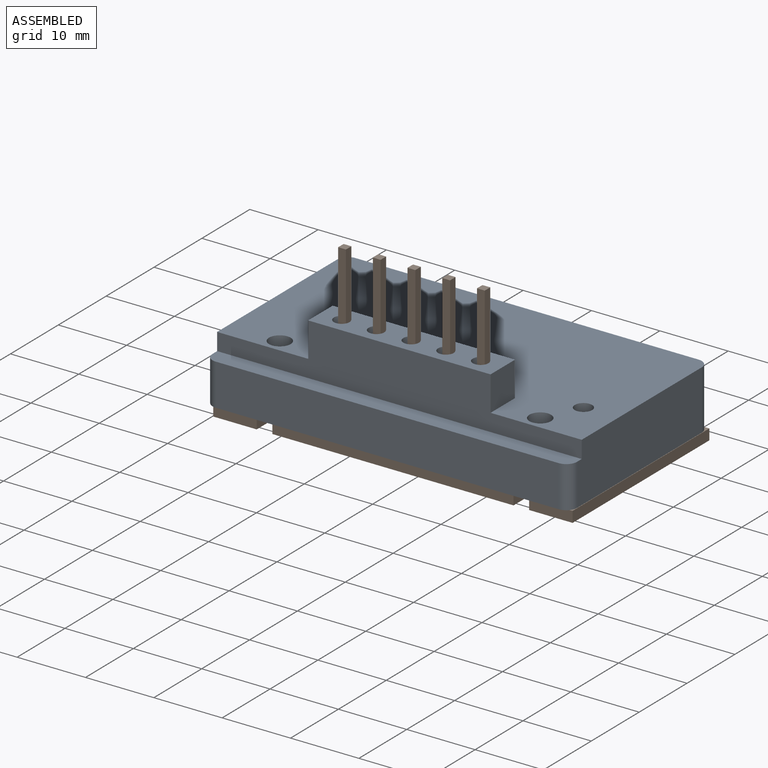
[diagram: assembled view]
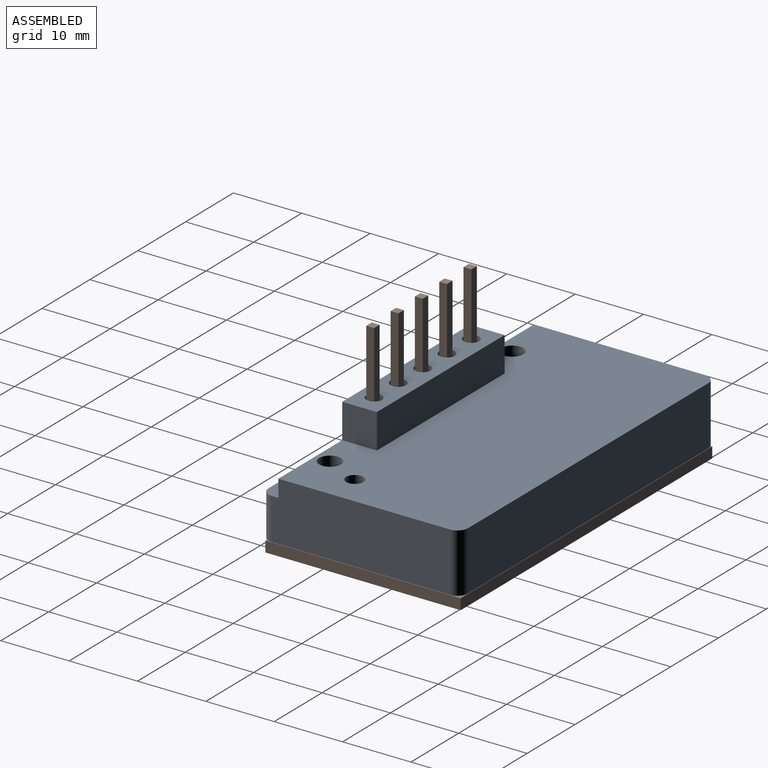
[diagram: assembled view, second angle]
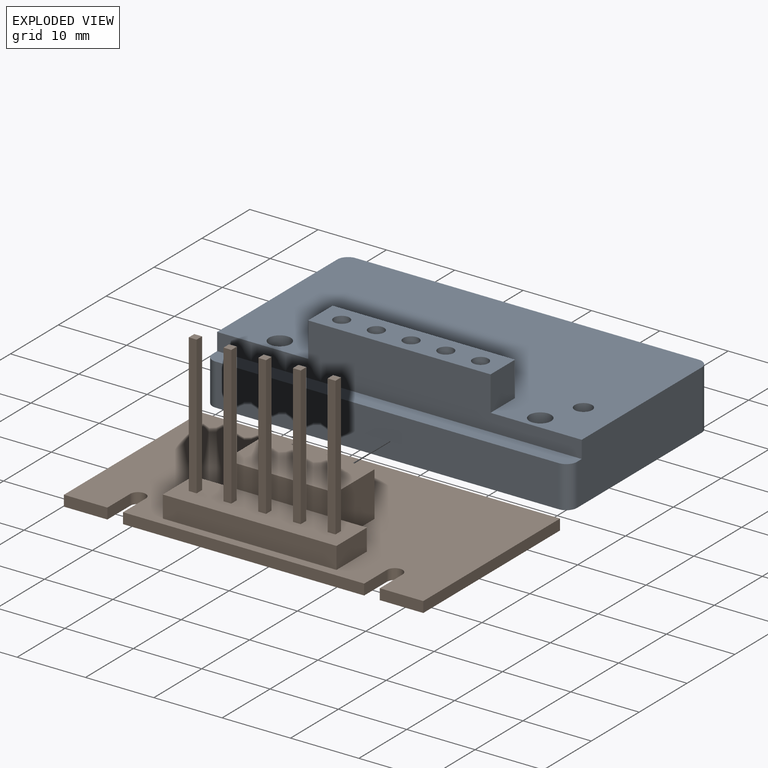
[diagram: exploded view]
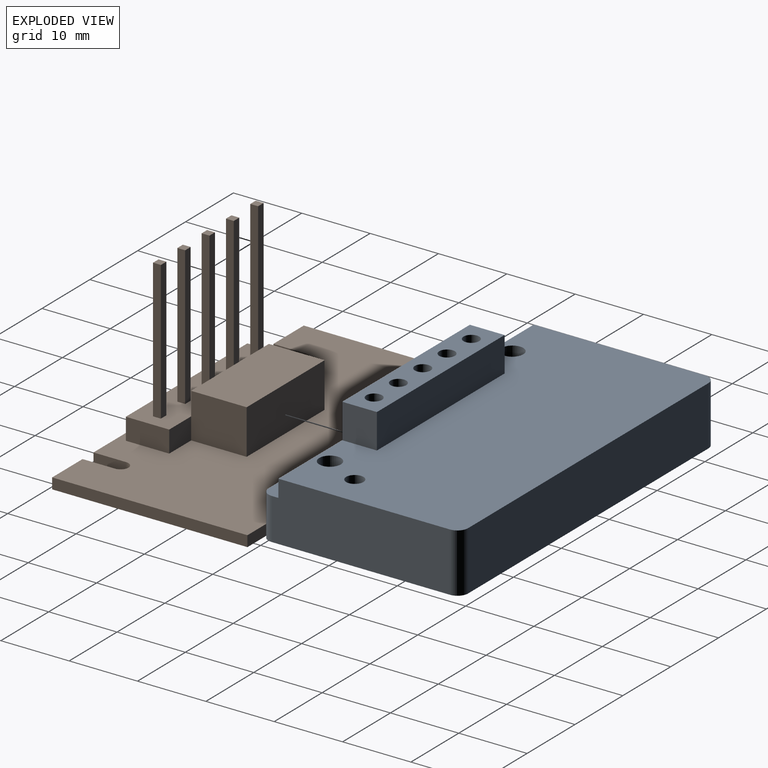
[diagram: exploded view, second angle]
ASSEMBLY  parts=2 mates=2
PART A: 47 faces, bbox 53.3x29.2x13.7 mm
  f0: plane 53.34x26.67mm, normal (0,0,1), area 1265.1mm2, adj f11,f12,f13,f17,f23,f24,f25,f40
  f1: plane 50.19x24.79mm, normal (0,0,-1), area 1132.5mm2, adj f2,f6,f8,f9,f19,f21,f27,f28
  f2: plane 3.93x1.91mm, normal (0,-1,0), area 7.5mm2, adj f1,f15,f21,f38
  f3: plane 6.99x5.08mm, normal (0,1,0), area 35.5mm2, adj f4,f10,f16,f36
  f4: plane 6.99x5.08mm, normal (-1,0,0), area 35.5mm2, adj f3,f10,f16,f36
  f5: plane 5.08x5.08mm, normal (0,0,-1), area 12.9mm2, adj f7,f18,f34
  f6: plane 37.49x6.99mm, normal (0,1,0), area 261.9mm2, adj f1,f16,f35,f37
  f7: plane 6.99x5.08mm, normal (1,0,0), area 35.5mm2, adj f5,f16,f18,f34
  f8: plane 33.86x1.91mm, normal (0,-1,0), area 64.5mm2, adj f1,f15,f32,f38
  f9: plane 3.93x1.91mm, normal (0,-1,0), area 7.5mm2, adj f1,f15,f19,f32
  f10: plane 5.08x5.08mm, normal (0,0,-1), area 12.9mm2, adj f3,f4,f36
  f11: plane 53.34x7.62mm, normal (0,1,0), area 271mm2, adj f0,f12,f13,f22,f23,f25,f26
  f12: plane 26.06x8.64mm, normal (-1,0,0), area 222.6mm2, adj f0,f11,f16,f22,f43,f46
  f13: plane 26.06x8.64mm, normal (1,0,0), area 222.6mm2, adj f0,f11,f16,f22,f44,f45
  f14: plane 50.19x6.1mm, normal (0,1,0), area 306mm2, adj f16,f22,f45,f46
  f15: plane 50.19x1.27mm, normal (0,0,-1), area 58.2mm2, adj f2,f8,f9,f19,f20,f21,f32,f38
  f16: plane 53.34x29.21mm, normal (0,0,-1), area 262.5mm2, adj f3,f4,f6,f7,f12,f13,f14,f17
  f17: plane 50.19x8.64mm, normal (0,-1,0), area 433.4mm2, adj f0,f16,f43,f44
  f18: plane 6.99x5.08mm, normal (0,1,0), area 35.5mm2, adj f5,f7,f16,f34
  f19: plane 19.71x6.99mm, normal (1,0,0), area 135.3mm2, adj f1,f9,f15,f16,f20,f35
  f20: plane 50.19x5.08mm, normal (0,-1,0), area 255mm2, adj f15,f16,f19,f21
  f21: plane 19.71x6.99mm, normal (-1,0,0), area 135.3mm2, adj f1,f2,f15,f16,f20,f37
  f22: plane 53.34x2.54mm, normal (0,0,1), area 134.4mm2, adj f11,f12,f13,f14,f45,f46
  f23: plane 5.08x5.08mm, normal (-1,0,0), area 25.8mm2, adj f0,f11,f24,f26
  f24: plane 26.67x5.08mm, normal (0,-1,0), area 135.5mm2, adj f0,f23,f25,f26
  f25: plane 5.08x5.08mm, normal (1,0,0), area 25.8mm2, adj f0,f11,f24,f26
  f26: plane 26.67x5.08mm, normal (0,0,1), area 115mm2, adj f11,f23,f24,f25,f27,f28,f29,f30
  f27: cylinder r=1.14mm len=6.73mm, axis (0,0,1), area 48.3mm2, adj f1,f26
  f28: cylinder r=1.14mm len=6.73mm, axis (0,0,1), area 48.3mm2, adj f1,f26
  f29: cylinder r=1.14mm len=6.73mm, axis (0,0,1), area 48.3mm2, adj f1,f26
  f30: cylinder r=1.14mm len=6.73mm, axis (0,0,1), area 48.3mm2, adj f1,f26
  f31: cylinder r=1.14mm len=6.73mm, axis (0,0,1), area 48.3mm2, adj f1,f26
  f32: cylinder r=2.86mm len=6.99mm, axis (0,0,1), area 116.3mm2, adj f1,f8,f9,f15,f33
  f33: plane 5.72x5.72mm, normal (0,0,-1), area 17.7mm2, adj f32,f40
  f34: plane 6.99x5.08mm, normal (-0.71,-0.71,0), area 50.2mm2, adj f5,f7,f16,f18
  f35: plane 6.99x6.35mm, normal (0.71,0.71,0), area 62.7mm2, adj f1,f6,f16,f19
  f36: plane 6.99x5.08mm, normal (0.71,-0.71,0), area 50.2mm2, adj f3,f4,f10,f16
  f37: plane 6.99x6.35mm, normal (-0.71,0.71,0), area 62.7mm2, adj f1,f6,f16,f21
  f38: cylinder r=2.86mm len=6.99mm, axis (0,0,1), area 116.3mm2, adj f1,f2,f8,f15,f39
  f39: plane 5.72x5.72mm, normal (0,0,-1), area 17.7mm2, adj f38,f42
  f40: cylinder r=1.59mm len=8.64mm, axis (0,0,-1), area 86.1mm2, adj f0,f33
  f41: cylinder r=1.27mm len=2.54mm, axis (0,0,-1), area 13.2mm2, adj f0,f1
  f42: cylinder r=1.59mm len=8.64mm, axis (0,0,-1), area 86.1mm2, adj f0,f39
  f43: cylinder r=1.57mm len=8.64mm, axis (0,0,-1), area 21.4mm2, adj f0,f12,f16,f17
  f44: cylinder r=1.57mm len=8.64mm, axis (0,0,1), area 21.4mm2, adj f0,f13,f16,f17
  f45: cylinder r=1.57mm len=6.1mm, axis (0,0,-1), area 15.1mm2, adj f13,f14,f16,f22
  f46: cylinder r=1.57mm len=6.1mm, axis (0,0,1), area 15.1mm2, adj f12,f14,f16,f22
PART B: 75 faces, bbox 52.6x28.6x26.7 mm
  f0: plane 4.57x3.18mm, normal (0,1,0), area 14.5mm2, adj f2,f3,f17,f71
  f1: plane 52.58x28.58mm, normal (0,0,-1), area 1470mm2, adj f4,f5,f6,f7,f8,f9,f10,f11
  f2: plane 25.4x6.35mm, normal (0,0,1), area 154.8mm2, adj f0,f16,f17,f18,f19,f20,f21,f22
  f3: plane 52.58x28.58mm, normal (0,0,1), area 1183.1mm2, adj f0,f4,f5,f6,f7,f8,f9,f10
  f4: plane 6.36x1.57mm, normal (0,-1,0), area 10mm2, adj f1,f3,f5,f15
  f5: plane 4.76x1.57mm, normal (1,0,0), area 7.5mm2, adj f1,f3,f4,f6
  f6: cylinder r=1.14mm len=2.29mm, axis (0,0,-1), area 5.7mm2, adj f1,f3,f5,f7
  f7: plane 4.76x1.57mm, normal (-1,0,0), area 7.5mm2, adj f1,f3,f6,f8
  f8: plane 35.29x1.57mm, normal (0,-1,0), area 55.6mm2, adj f1,f3,f7,f9
  f9: plane 4.76x1.57mm, normal (1,0,0), area 7.5mm2, adj f1,f3,f8,f10
  f10: cylinder r=1.14mm len=2.29mm, axis (0,0,-1), area 5.7mm2, adj f1,f3,f9,f11
  f11: plane 4.76x1.57mm, normal (-1,0,0), area 7.5mm2, adj f1,f3,f10,f12
  f12: plane 6.36x1.57mm, normal (0,-1,0), area 10mm2, adj f1,f3,f11,f13
  f13: plane 28.58x1.57mm, normal (1,0,0), area 45mm2, adj f1,f3,f12,f14
  f14: plane 52.58x1.57mm, normal (0,1,0), area 82.8mm2, adj f1,f3,f13,f15
  f15: plane 28.58x1.57mm, normal (-1,0,0), area 45mm2, adj f1,f3,f4,f14
  f16: plane 4.57x3.18mm, normal (0,1,0), area 14.5mm2, adj f2,f3,f19,f72
  f17: plane 6.35x3.18mm, normal (-1,0,0), area 20.2mm2, adj f0,f2,f3,f18
  f18: plane 25.4x3.18mm, normal (0,-1,0), area 80.6mm2, adj f2,f3,f17,f19
  f19: plane 6.35x3.18mm, normal (1,0,0), area 20.2mm2, adj f2,f3,f16,f18
  f20: plane 20.32x1.14mm, normal (0,1,0), area 23.2mm2, adj f2,f21,f23,f24
  f21: plane 20.32x1.14mm, normal (-1,0,0), area 23.2mm2, adj f2,f20,f22,f24
  f22: plane 20.32x1.14mm, normal (0,-1,0), area 23.2mm2, adj f2,f21,f23,f24
  f23: plane 20.32x1.14mm, normal (1,0,0), area 23.2mm2, adj f2,f20,f22,f24
  f24: plane 1.14x1.14mm, normal (0,0,1), area 1.3mm2, adj f20,f21,f22,f23
  f25: plane 20.32x1.14mm, normal (0,1,0), area 23.2mm2, adj f2,f26,f28,f29
  f26: plane 20.32x1.14mm, normal (-1,0,0), area 23.2mm2, adj f2,f25,f27,f29
  f27: plane 20.32x1.14mm, normal (0,-1,0), area 23.2mm2, adj f2,f26,f28,f29
  f28: plane 20.32x1.14mm, normal (1,0,0), area 23.2mm2, adj f2,f25,f27,f29
  f29: plane 1.14x1.14mm, normal (0,0,1), area 1.3mm2, adj f25,f26,f27,f28
  f30: plane 20.32x1.14mm, normal (0,1,0), area 23.2mm2, adj f2,f31,f33,f34
  f31: plane 20.32x1.14mm, normal (-1,0,0), area 23.2mm2, adj f2,f30,f32,f34
  f32: plane 20.32x1.14mm, normal (0,-1,0), area 23.2mm2, adj f2,f31,f33,f34
  f33: plane 20.32x1.14mm, normal (1,0,0), area 23.2mm2, adj f2,f30,f32,f34
  f34: plane 1.14x1.14mm, normal (0,0,1), area 1.3mm2, adj f30,f31,f32,f33
  f35: plane 20.32x1.14mm, normal (0,1,0), area 23.2mm2, adj f2,f36,f38,f39
  f36: plane 20.32x1.14mm, normal (-1,0,0), area 23.2mm2, adj f2,f35,f37,f39
  f37: plane 20.32x1.14mm, normal (0,-1,0), area 23.2mm2, adj f2,f36,f38,f39
  f38: plane 20.32x1.14mm, normal (1,0,0), area 23.2mm2, adj f2,f35,f37,f39
  f39: plane 1.14x1.14mm, normal (0,0,1), area 1.3mm2, adj f35,f36,f37,f38
  f40: plane 20.32x1.14mm, normal (0,1,0), area 23.2mm2, adj f2,f41,f43,f44
  f41: plane 20.32x1.14mm, normal (-1,0,0), area 23.2mm2, adj f2,f40,f42,f44
  f42: plane 20.32x1.14mm, normal (0,-1,0), area 23.2mm2, adj f2,f41,f43,f44
  f43: plane 20.32x1.14mm, normal (1,0,0), area 23.2mm2, adj f2,f40,f42,f44
  f44: plane 1.14x1.14mm, normal (0,0,1), area 1.3mm2, adj f40,f41,f42,f43
  f45: plane 1.6x1.14mm, normal (0,1,0), area 1.8mm2, adj f1,f46,f48,f49
  f46: plane 1.6x1.14mm, normal (-1,0,0), area 1.8mm2, adj f1,f45,f47,f49
  f47: plane 1.6x1.14mm, normal (0,-1,0), area 1.8mm2, adj f1,f46,f48,f49
  f48: plane 1.6x1.14mm, normal (1,0,0), area 1.8mm2, adj f1,f45,f47,f49
  f49: plane 1.14x1.14mm, normal (0,0,-1), area 1.3mm2, adj f45,f46,f47,f48
  f50: plane 1.6x1.14mm, normal (0,1,0), area 1.8mm2, adj f1,f51,f53,f54
  f51: plane 1.6x1.14mm, normal (-1,0,0), area 1.8mm2, adj f1,f50,f52,f54
  f52: plane 1.6x1.14mm, normal (0,-1,0), area 1.8mm2, adj f1,f51,f53,f54
  f53: plane 1.6x1.14mm, normal (1,0,0), area 1.8mm2, adj f1,f50,f52,f54
  f54: plane 1.14x1.14mm, normal (0,0,-1), area 1.3mm2, adj f50,f51,f52,f53
  f55: plane 1.6x1.14mm, normal (0,1,0), area 1.8mm2, adj f1,f56,f58,f59
  f56: plane 1.6x1.14mm, normal (-1,0,0), area 1.8mm2, adj f1,f55,f57,f59
  f57: plane 1.6x1.14mm, normal (0,-1,0), area 1.8mm2, adj f1,f56,f58,f59
  f58: plane 1.6x1.14mm, normal (1,0,0), area 1.8mm2, adj f1,f55,f57,f59
  f59: plane 1.14x1.14mm, normal (0,0,-1), area 1.3mm2, adj f55,f56,f57,f58
  f60: plane 1.6x1.14mm, normal (0,1,0), area 1.8mm2, adj f1,f61,f63,f64
  f61: plane 1.6x1.14mm, normal (-1,0,0), area 1.8mm2, adj f1,f60,f62,f64
  f62: plane 1.6x1.14mm, normal (0,-1,0), area 1.8mm2, adj f1,f61,f63,f64
  f63: plane 1.6x1.14mm, normal (1,0,0), area 1.8mm2, adj f1,f60,f62,f64
  f64: plane 1.14x1.14mm, normal (0,0,-1), area 1.3mm2, adj f60,f61,f62,f63
  f65: plane 1.6x1.14mm, normal (0,1,0), area 1.8mm2, adj f1,f66,f68,f69
  f66: plane 1.6x1.14mm, normal (-1,0,0), area 1.8mm2, adj f1,f65,f67,f69
  f67: plane 1.6x1.14mm, normal (0,-1,0), area 1.8mm2, adj f1,f66,f68,f69
  f68: plane 1.6x1.14mm, normal (1,0,0), area 1.8mm2, adj f1,f65,f67,f69
  f69: plane 1.14x1.14mm, normal (0,0,-1), area 1.3mm2, adj f65,f66,f67,f68
  f70: plane 16.26x3.38mm, normal (0,-1,0), area 54.9mm2, adj f2,f71,f72,f74
  f71: plane 8.13x6.55mm, normal (-1,0,0), area 53.3mm2, adj f0,f3,f70,f73,f74
  f72: plane 8.13x6.55mm, normal (1,0,0), area 53.3mm2, adj f3,f16,f70,f73,f74
  f73: plane 16.26x6.55mm, normal (0,1,0), area 106.5mm2, adj f3,f71,f72,f74
  f74: plane 16.26x8.13mm, normal (0,0,1), area 132.1mm2, adj f70,f71,f72,f73
PLACE A rot(axis=(0,0,1),180deg) t=(-0.79,-1.21,8.07)mm
PLACE B t=(-0.41,-0.89,6.44)mm
MATE planar A.f17 <-> B.f14  axis (0,1,0) through (-0.79,13.4,12.38)mm
MATE planar B.f13 <-> A.f12  axis (1,0,0) through (25.88,-0.89,7.23)mm
